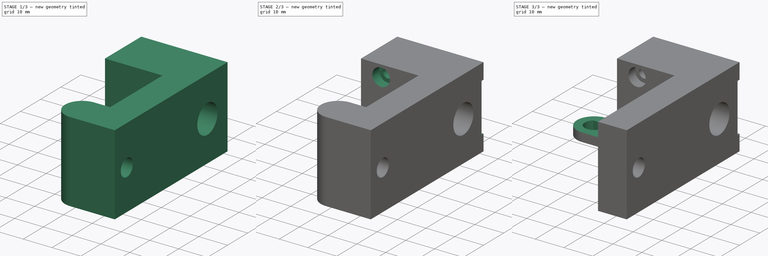
[diagram: build sequence overview — one tinted view per stage of 3, left to right]
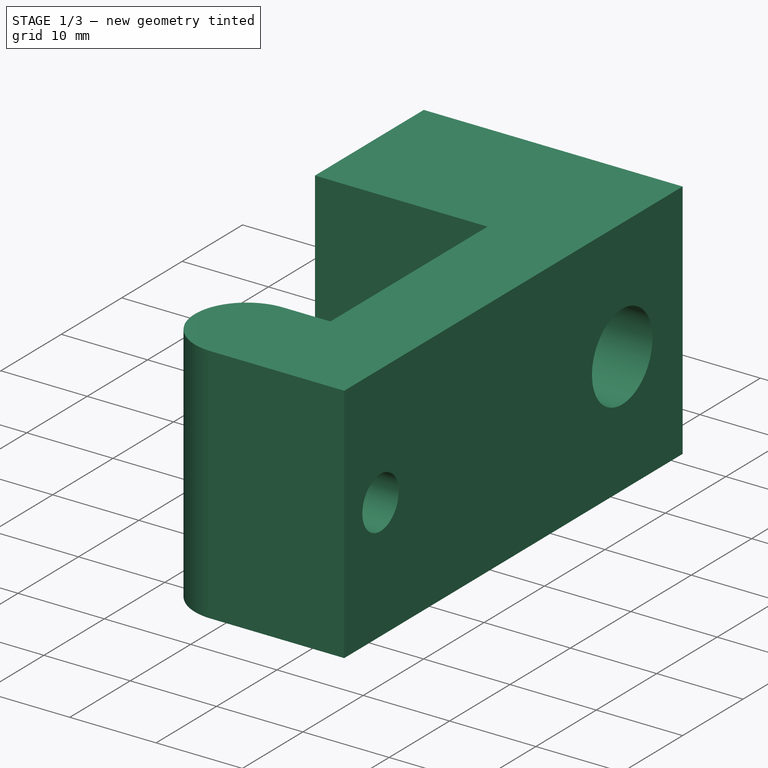
[diagram: stage 1 of 3 — iso view after this stage's code; geometry added in this stage tinted green]
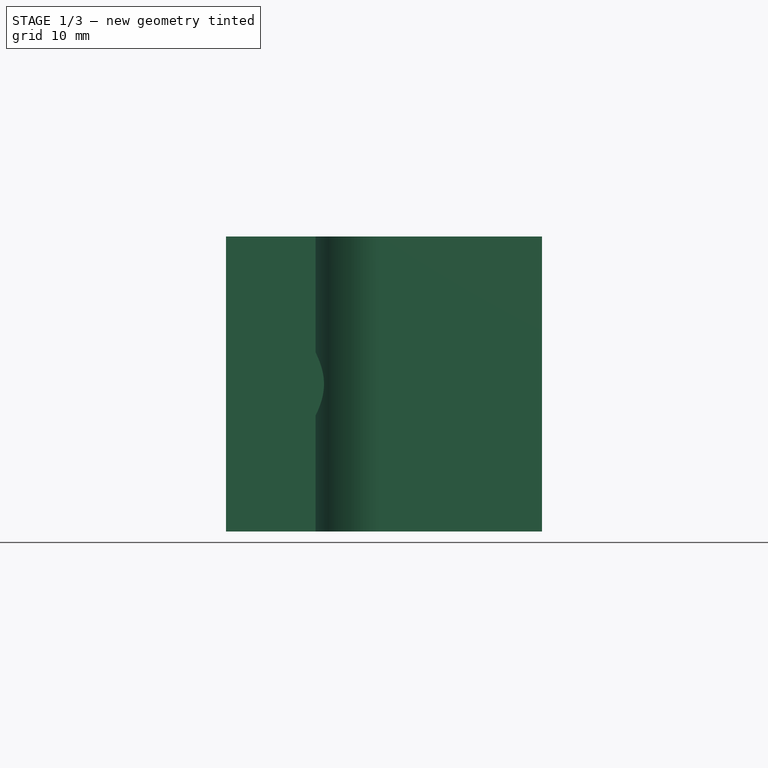
[diagram: stage 1 of 3 — front view after this stage's code; geometry added in this stage tinted green]
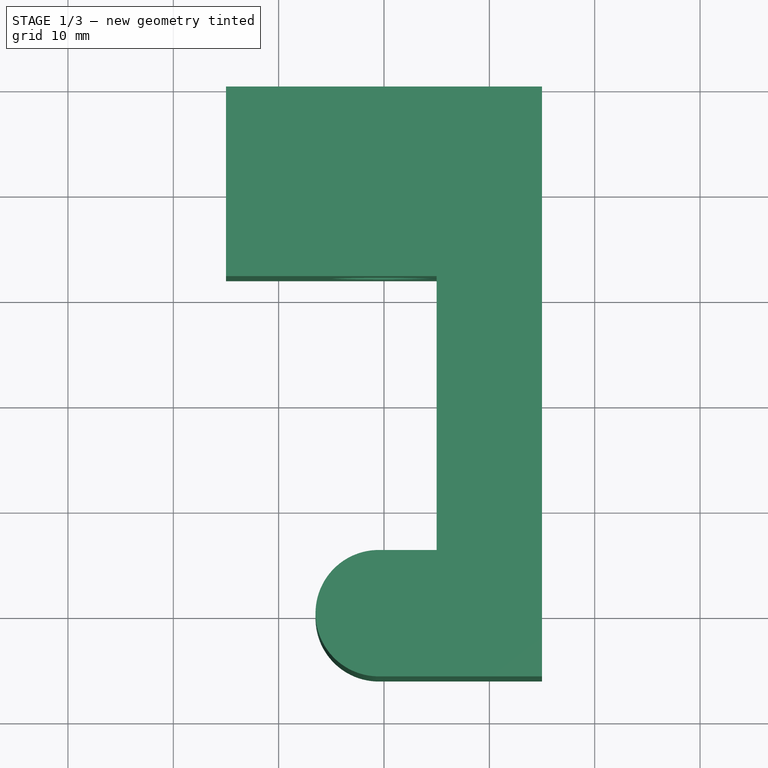
[diagram: stage 1 of 3 — top view after this stage's code; geometry added in this stage tinted green]
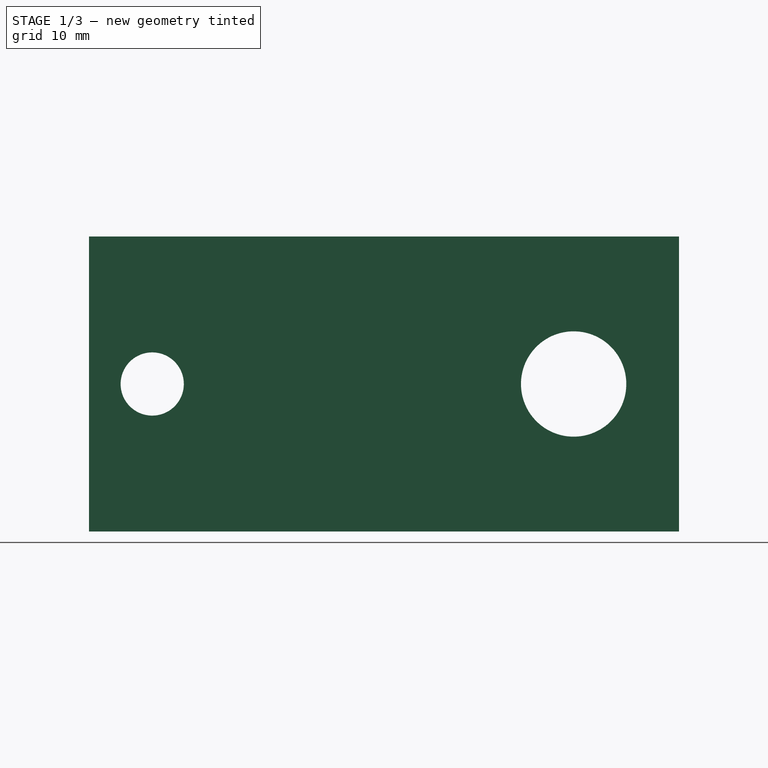
[diagram: stage 1 of 3 — right view after this stage's code; geometry added in this stage tinted green]
FCSTD DOCUMENT  (FreeCAD 0.21R33694 (Git))
Label: gamma-match-node-threads
License: All rights reserved
LicenseURL: https://en.wikipedia.org/wiki/All_rights_reserved
objects: Sketcher::SketchObject×11, PartDesign::Pocket×5, PartDesign::Plane×4, PartDesign::Hole×2, PartDesign::Pad×1, Part::Feature×1, PartDesign::Body×1
note: 33 computed .brp shape members not serialized (recipe doc carries the construction recipe); baked Part::Feature solids carry a one-line shape summary decoded from their .brp

FEATURE [Sketcher::SketchObject] Sketch  label="Master XY"
  FullyConstrained = true
  MapMode = 5
  Support = -> [XY_Plane]
  sketch-geometry (21):
    g0: LineSegment StartX=-15 StartY=-8 StartZ=0 EndX=-15 EndY=10 EndZ=0
    g1: LineSegment StartX=-15 StartY=10 StartZ=0 EndX=15 EndY=10 EndZ=0
    g2: LineSegment StartX=15 StartY=10 StartZ=0 EndX=15 EndY=-46 EndZ=0
    g3: LineSegment StartX=15 StartY=-46 StartZ=0 EndX=5 EndY=-46 EndZ=0
    g4: LineSegment StartX=-100 StartY=5 StartZ=0 EndX=100 EndY=5 EndZ=0
    g5: LineSegment StartX=100 StartY=5 StartZ=0 EndX=100 EndY=-5 EndZ=0
    g6: LineSegment StartX=100 StartY=-5 StartZ=0 EndX=-100 EndY=-5 EndZ=0
    g7: LineSegment StartX=-100 StartY=-5 StartZ=0 EndX=-100 EndY=5 EndZ=0
    g8: Circle CenterX=10 CenterY=-32 CenterZ=0 NormalX=0 NormalY=0 NormalZ=1 AngleXU=0 Radius=2
    g9: LineSegment StartX=-15 StartY=-8 StartZ=0 EndX=5 EndY=-8 EndZ=0
    g10: LineSegment StartX=-100 StartY=-37 StartZ=0 EndX=100 EndY=-37 EndZ=0
    g11: LineSegment StartX=100 StartY=-37 StartZ=0 EndX=100 EndY=-43 EndZ=0
    g12: LineSegment StartX=100 StartY=-43 StartZ=0 EndX=-100 EndY=-43 EndZ=0
    g13: LineSegment StartX=-100 StartY=-43 StartZ=0 EndX=-100 EndY=-37 EndZ=0
    g14: LineSegment StartX=100 StartY=-40 StartZ=0 EndX=-100 EndY=-40 EndZ=0
    g15: Circle CenterX=-0.5 CenterY=-40 CenterZ=0 NormalX=0 NormalY=0 NormalZ=1 AngleXU=0 Radius=3.25
    g16: ArcOfCircle CenterX=-0.5 CenterY=-40 CenterZ=0 NormalX=0 NormalY=0 NormalZ=1 AngleXU=0 Radius=6 StartAngle=1.5708 EndAngle=4.71239
    g17: LineSegment StartX=-0.5 StartY=-34 StartZ=0 EndX=5 EndY=-34 EndZ=0
    g18: LineSegment StartX=-0.5 StartY=-46 StartZ=0 EndX=5 EndY=-46 EndZ=0
    g19: LineSegment StartX=-0.5 StartY=-46 StartZ=0 EndX=-0.5 EndY=-34 EndZ=0
    g20: LineSegment StartX=5 StartY=-8 StartZ=0 EndX=5 EndY=-34 EndZ=0
  constraints (61):
    c: Coincident(g0,g1)
    c: Coincident(g1,g2)
    c: Vertical(g2)
    c: Coincident(g2,g3)
    c: Horizontal(g3)
    c: Symmetric(g0,g1,g-2)
    c: Coincident(g4,g5)
    c: Coincident(g5,g6)
    c: Coincident(g6,g7)
    c: Coincident(g7,g4)
    c: Horizontal(g4)
    c: Horizontal(g6)
    c: Vertical(g5)
    c: Vertical(g7)
    c: DistanceY(g5,g5) = 10
    c: Symmetric(g4,g6,g-1)
    c: DistanceX(g4,g4) = 200
    c: DistanceX(g3,g3) = 10
    c: Diameter(g8) = 4
    c: Coincident(g9,g0)
    c: Horizontal(g9)
    c: DistanceX(g1,g1) = 30
    c: DistanceY(g0,g-1) = 8
    c: DistanceY(g-1,g0) = 10
    c: Vertical(g0)
    c: Coincident(g10,g11)
    c: Coincident(g11,g12)
    c: Coincident(g12,g13)
    c: Coincident(g13,g10)
    c: Horizontal(g10)
    c: Horizontal(g12)
    c: Vertical(g11)
    c: Equal(g10,g6)
    c: DistanceY(g13,g13) = 6
    c: DistanceY(g10,g5) = 32
    c: DistanceY(g11,g8) = 11
    c: PointOnObject(g14,g11)
    c: PointOnObject(g14,g13)
    c: Horizontal(g14)
    c: DistanceY(g14,g10) = 3
    c: DistanceX(g8,g2) = 5
    c: Equal(g14,g12)
    c: Vertical(g10,g5)
    c: PointOnObject(g15,g14)
    c: Diameter(g15) = 6.5
    c: DistanceX(g15,g3) = 5.5
    c: Coincident(g16,g15)
    c: Radius(g16) = 6
    c: Coincident(g17,g16)
    c: Horizontal(g17)
    c: Coincident(g18,g16)
    c: Horizontal(g18)
    c: Vertical(g19)
    c: PointOnObject(g15,g19)
    c: Coincident(g19,g16)
    c: Coincident(g19,g16)
    c: Coincident(g20,g9)
    c: Coincident(g20,g17)
    c: Vertical(g20)
    c: Equal(g18,g17)
    c: Coincident(g3,g18)
FEATURE [Sketcher::SketchObject] Sketch001
  ExternalGeometry = -> [Sketch]
  FullyConstrained = true
  MapMode = 5
  Support = -> [XY_Plane]
  sketch-geometry (9):
    g0: LineSegment StartX=-15 StartY=-8 StartZ=0 EndX=-15 EndY=10 EndZ=0
    g1: LineSegment StartX=-15 StartY=10 StartZ=0 EndX=15 EndY=10 EndZ=0
    g2: LineSegment StartX=15 StartY=10 StartZ=0 EndX=15 EndY=-46 EndZ=0
    g3: LineSegment StartX=-15 StartY=-8 StartZ=0 EndX=5 EndY=-8 EndZ=0
    g4: LineSegment StartX=5 StartY=-8 StartZ=0 EndX=5 EndY=-34 EndZ=0
    g5: ArcOfCircle CenterX=-0.5 CenterY=-40 CenterZ=0 NormalX=0 NormalY=0 NormalZ=1 AngleXU=0 Radius=6 StartAngle=1.5708 EndAngle=4.71239
    g6: LineSegment StartX=-0.5 StartY=-34 StartZ=0 EndX=5 EndY=-34 EndZ=0
    g7: LineSegment StartX=-0.5 StartY=-46 StartZ=0 EndX=5 EndY=-46 EndZ=0
    g8: LineSegment StartX=5 StartY=-46 StartZ=0 EndX=15 EndY=-46 EndZ=0
  constraints (19):
    c: Coincident(g0,g-8)
    c: Coincident(g0,g1)
    c: Coincident(g-7,g1)
    c: Coincident(g1,g2)
    c: Coincident(g2,g-6)
    c: Coincident(g3,g0)
    c: Coincident(g-4,g0)
    c: Coincident(g4,g-3)
    c: Coincident(g3,g4)
    c: Coincident(g4,g-11)
    c: Coincident(g5,g-10)
    c: Coincident(g5,g-12)
    c: Coincident(g6,g5)
    c: Coincident(g6,g4)
    c: Coincident(g7,g5)
    c: Coincident(g7,g-5)
    c: Horizontal(g7)
    c: Coincident(g8,g7)
    c: Coincident(g8,g2)
FEATURE [Sketcher::SketchObject] Sketch003  label="Antenna element holes"
  ExternalGeometry = -> [Sketch]
  FullyConstrained = true
  MapMode = 5
  Placement = pos=(0,0,0) rot=(0.57735,0.57735,0.57735;2.0944rad)
  Support = -> [YZ_Plane]
  sketch-geometry (2):
    g0: Circle CenterX=0 CenterY=0 CenterZ=0 NormalX=0 NormalY=0 NormalZ=1 AngleXU=0 Radius=5
    g1: Circle CenterX=-40 CenterY=0 CenterZ=0 NormalX=0 NormalY=0 NormalZ=1 AngleXU=0 Radius=3
  constraints (5):
    c: Coincident(g0,g-1)
    c: Diameter(g0) = 10
    c: PointOnObject(g1,g-1)
    c: Diameter(g1) = 6
    c: DistanceX(g1,g0) = 40
FEATURE [PartDesign::Pad] Pad
  Direction = (0,0,1)
  Length = 28
  Length2 = 13
  Midplane = true
  Profile = -> Sketch001
  ReferenceAxis = -> Sketch001 [N_Axis]
  Type = 0
FEATURE [Sketcher::SketchObject] Sketch008  label="Master XZ"
  ExternalGeometry = -> [Sketch]
  FullyConstrained = true
  MapMode = 5
  Placement = pos=(0,0,0) rot=(1,0,0;1.5708rad)
  Support = -> [XZ_Plane]
  sketch-geometry (8):
    g0: LineSegment StartX=-15 StartY=8.5 StartZ=0 EndX=15 EndY=8.5 EndZ=0
    g1: LineSegment StartX=15 StartY=8.5 StartZ=0 EndX=15 EndY=-8.5 EndZ=0
    g2: LineSegment StartX=15 StartY=-8.5 StartZ=0 EndX=-15 EndY=-8.5 EndZ=0
    g3: LineSegment StartX=-15 StartY=-8.5 StartZ=0 EndX=-15 EndY=8.5 EndZ=0
    g4: Circle CenterX=0 CenterY=0 CenterZ=0 NormalX=0 NormalY=0 NormalZ=1 AngleXU=0 Radius=5
    g5: Circle CenterX=-8 CenterY=10 CenterZ=0 NormalX=0 NormalY=0 NormalZ=1 AngleXU=0 Radius=1.5
    g6: Circle CenterX=-8 CenterY=-10 CenterZ=0 NormalX=0 NormalY=0 NormalZ=1 AngleXU=0 Radius=1.5
    g7: LineSegment StartX=-8 StartY=10 StartZ=0 EndX=-8 EndY=-10 EndZ=0
  constraints (20):
    c: Coincident(g0,g1)
    c: Coincident(g1,g2)
    c: Coincident(g2,g3)
    c: Coincident(g3,g0)
    c: Horizontal(g0)
    c: Horizontal(g2)
    c: Vertical(g1)
    c: Vertical(g3)
    c: Symmetric(g2,g0,g-1)
    c: DistanceY(g1,g1) = 17
    c: PointOnObject(g-3,g3)
    c: Coincident(g4,g-1)
    c: Diameter(g4) = 10
    c: Equal(g5,g6)
    c: Diameter(g5) = 3
    c: Symmetric(g5,g6,g-1)
    c: DistanceY(g4,g5) = 10
    c: Coincident(g7,g5)
    c: DistanceX(g5,g4) = 8
    c: Coincident(g7,g6)
FEATURE [Sketcher::SketchObject] Sketch009
  AttachmentOffset = pos=(0,0,-4) rot=(0,0,1;0rad)
  FullyConstrained = true
  MapMode = 5
  Placement = pos=(0,0,-4) rot=(0,0,1;0rad)
  Support = -> [XY_Plane]
  sketch-geometry (1):
    g0: Circle CenterX=0 CenterY=0 CenterZ=0 NormalX=0 NormalY=0 NormalZ=1 AngleXU=0 Radius=1.5
  constraints (2):
    c: Coincident(g0,g-1)
    c: Diameter(g0) = 3
FEATURE [PartDesign::Pocket] Pocket
  BaseFeature = -> Pad
  Direction = (-1,2e-16,-3e-16)
  Length = 5
  Length2 = 5
  Midplane = true
  Profile = -> Sketch003
  ReferenceAxis = -> Sketch003 [N_Axis]
  Type = 1
FEATURE [Part::Feature] _01_9889_rfx
  Placement = pos=(-0.5,-40,10.5) rot=(0.57735,0.57735,-0.57735;2.0944rad)
  shape: bbox 10.62 x 10.62 x 17.32 mm, 151 faces, 0 solids (baked)
FEATURE [PartDesign::Plane] DatumPlane004  label="Driven element plane"
  Length = 60
  MapMode = 5
  Placement = pos=(0,-8,0) rot=(1,0,0;1.5708rad)
  ResizeMode = 0
  Support = -> [Pocket]
  Width = 60
FEATURE [Sketcher::SketchObject] Sketch010  label="Driven element screws"
  ExternalGeometry = -> [Sketch008]
  FullyConstrained = true
  MapMode = 5
  Placement = pos=(0,-8,0) rot=(1,0,0;1.5708rad)
  Support = -> [DatumPlane004]
  sketch-geometry (2):
    g0: Circle CenterX=-8 CenterY=10 CenterZ=0 NormalX=0 NormalY=0 NormalZ=1 AngleXU=0 Radius=1.5
    g1: Circle CenterX=-8 CenterY=-10 CenterZ=0 NormalX=0 NormalY=0 NormalZ=1 AngleXU=0 Radius=1.5
  constraints (4):
    c: Coincident(g1,g-3)
    c: Coincident(g0,g-4)
    c: Equal(g-4,g0)
    c: Equal(g1,g-3)
FEATURE [Sketcher::SketchObject] Sketch011  label="Driven element access"
  ExternalGeometry = -> [Sketch008]
  FullyConstrained = true
  MapMode = 5
  Placement = pos=(0,-8,0) rot=(1,0,0;1.5708rad)
  Support = -> [DatumPlane004]
  sketch-geometry (1):
    g0: Circle CenterX=0 CenterY=0 CenterZ=0 NormalX=0 NormalY=0 NormalZ=1 AngleXU=0 Radius=5
  constraints (2):
    c: Coincident(g0,g-1)
    c: Diameter(g0) = 10
FEATURE [PartDesign::Pocket] Pocket001  label="Driven element access001"
  BaseFeature = -> Pocket
  Direction = (0,1,-2e-16)
  Length = 5
  Length2 = 5
  Profile = -> Sketch011
  ReferenceAxis = -> Sketch011 [N_Axis]
  Type = 2
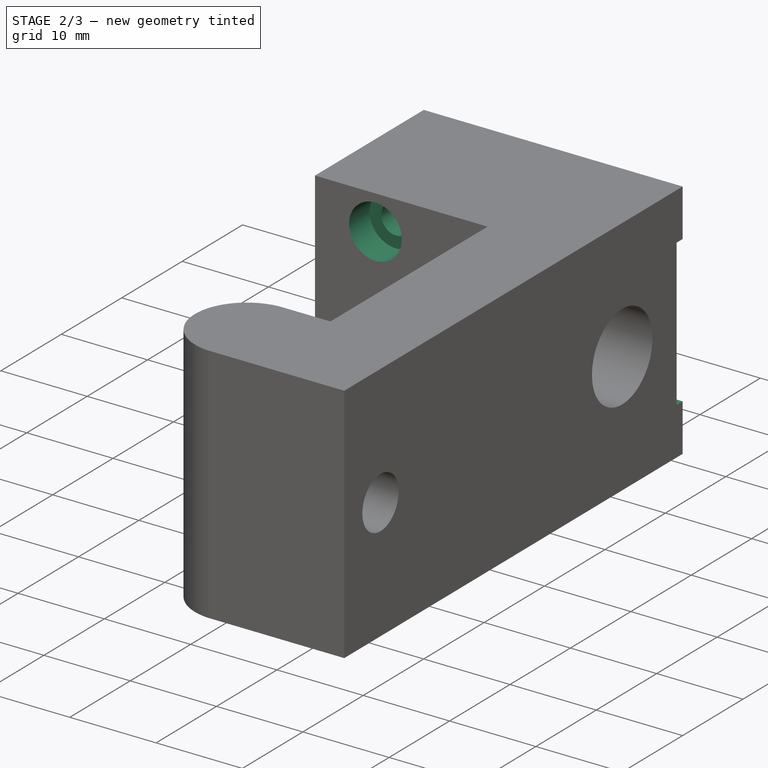
[diagram: stage 2 of 3 — iso view after this stage's code; geometry added in this stage tinted green]
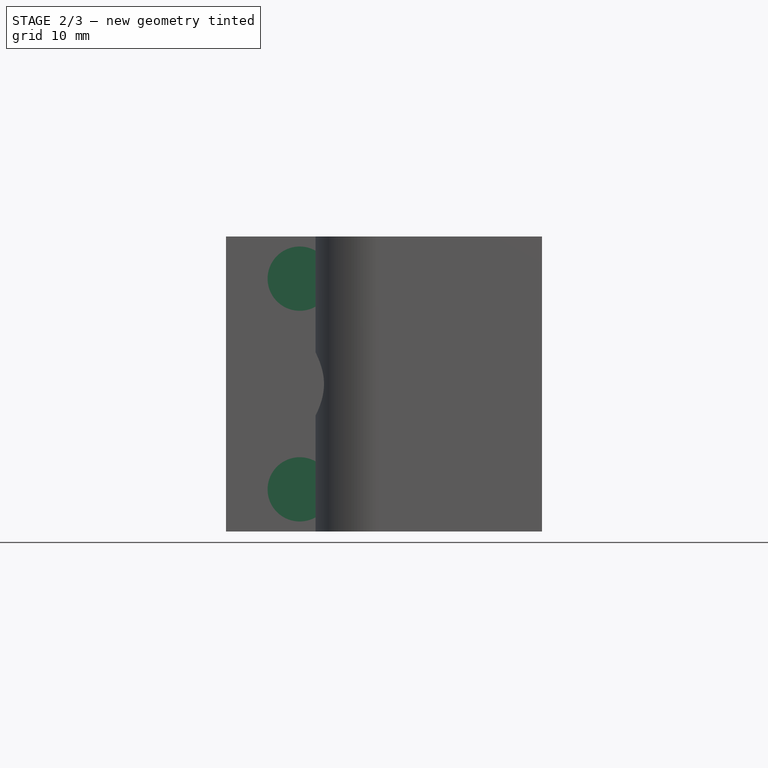
[diagram: stage 2 of 3 — front view after this stage's code; geometry added in this stage tinted green]
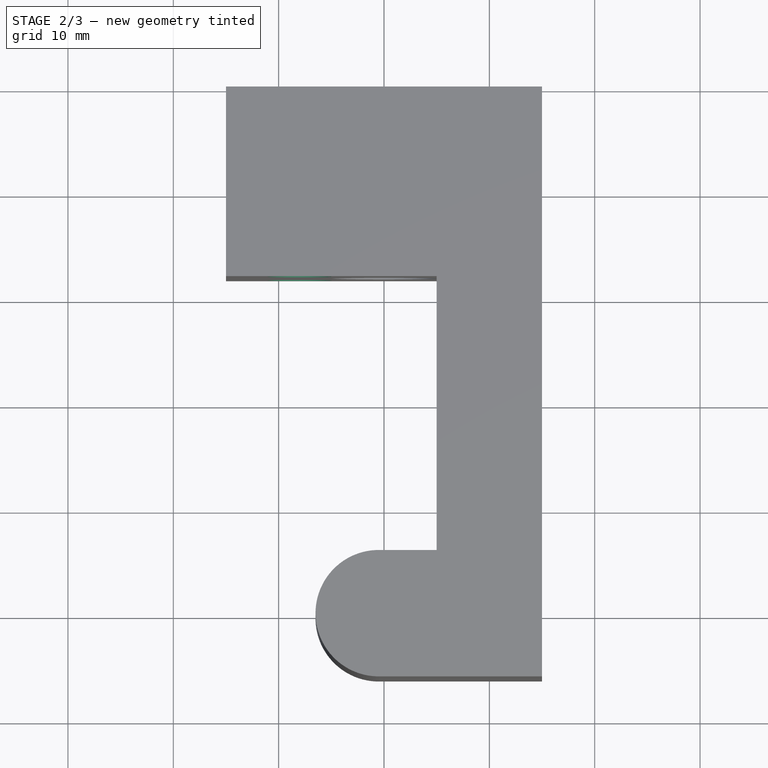
[diagram: stage 2 of 3 — top view after this stage's code; geometry added in this stage tinted green]
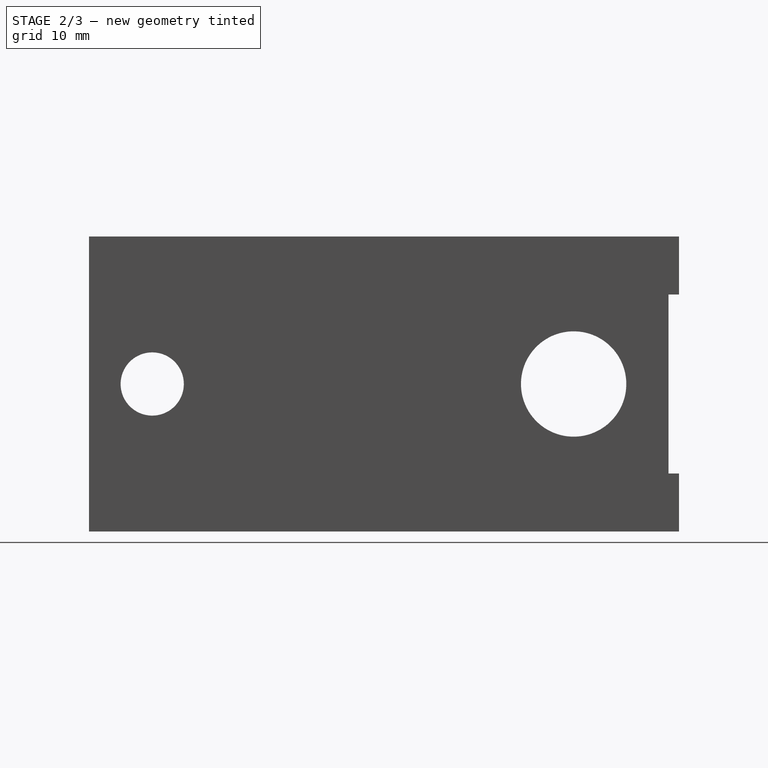
[diagram: stage 2 of 3 — right view after this stage's code; geometry added in this stage tinted green]
FEATURE [PartDesign::Hole] Hole  label="Driven element screws001"
  BaseFeature = -> Pocket001
  CustomThreadClearance = 0
  Depth = 8
  DepthType = 0
  Diameter = 3.4
  DrillForDepth = false
  DrillPoint = 0
  DrillPointAngle = 118
  HoleCutCountersinkAngle = 90
  HoleCutCustomValues = false
  HoleCutDepth = 3.4
  HoleCutDiameter = 6.1
  HoleCutType = 1
  ModelThread = false
  Profile = -> Sketch010
  Tapered = false
  TaperedAngle = 90
  ThreadClass = 0
  ThreadDepth = 8
  ThreadDepthType = 0
  ThreadDirection = 0
  ThreadFit = 0
  ThreadSize = 9
  ThreadType = 1
  Threaded = false
  UseCustomThreadClearance = false
FEATURE [PartDesign::Plane] DatumPlane  label="Fixing plane"
  Length = 60
  MapMode = 5
  Placement = pos=(0,10,0) rot=(0,0.707107,0.707107;3.14159rad)
  ResizeMode = 0
  Support = -> [Pocket]
  Width = 60
FEATURE [Sketcher::SketchObject] Sketch013  label="Fixing slot"
  ExternalGeometry = -> [Sketch008]
  FullyConstrained = true
  MapMode = 5
  Placement = pos=(0,10,0) rot=(0,0.707107,0.707107;3.14159rad)
  Support = -> [DatumPlane]
  sketch-geometry (4):
    g0: LineSegment StartX=15 StartY=8.5 StartZ=0 EndX=-15 EndY=8.5 EndZ=0
    g1: LineSegment StartX=-15 StartY=8.5 StartZ=0 EndX=-15 EndY=-8.5 EndZ=0
    g2: LineSegment StartX=-15 StartY=-8.5 StartZ=0 EndX=15 EndY=-8.5 EndZ=0
    g3: LineSegment StartX=15 StartY=-8.5 StartZ=0 EndX=15 EndY=8.5 EndZ=0
  constraints (10):
    c: Coincident(g0,g1)
    c: Coincident(g1,g2)
    c: Coincident(g2,g3)
    c: Coincident(g3,g0)
    c: Horizontal(g0)
    c: Horizontal(g2)
    c: Vertical(g1)
    c: Vertical(g3)
    c: Coincident(g0,g-6)
    c: Coincident(g1,g-5)
FEATURE [PartDesign::Pocket] Pocket003  label="Fixing slot001"
  BaseFeature = -> Hole
  Direction = (0,-1,2e-16)
  Length = 1
  Length2 = 5
  Profile = -> Sketch013
  ReferenceAxis = -> Sketch013 [N_Axis]
  Type = 0
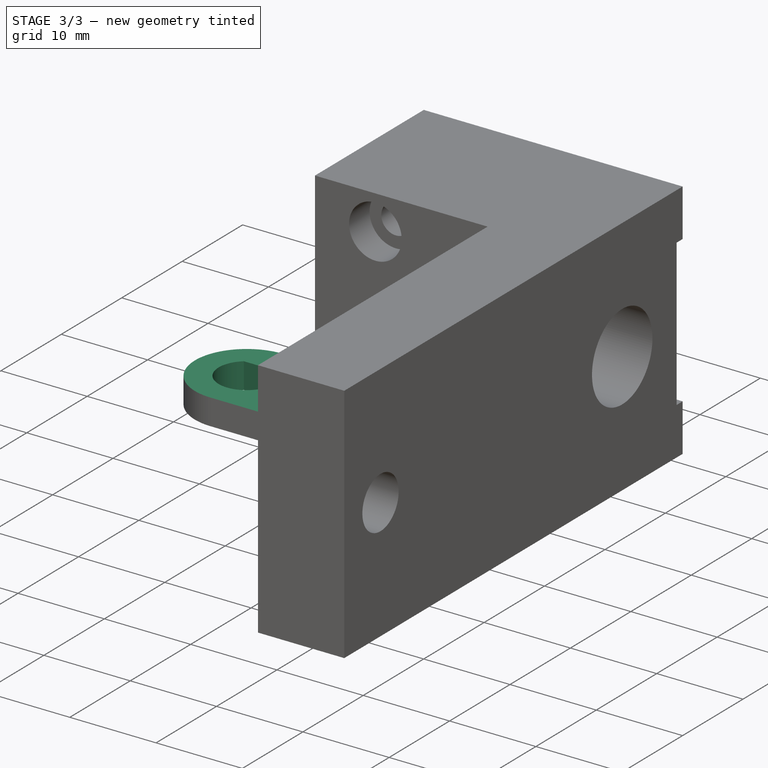
[diagram: stage 3 of 3 — iso view after this stage's code; geometry added in this stage tinted green]
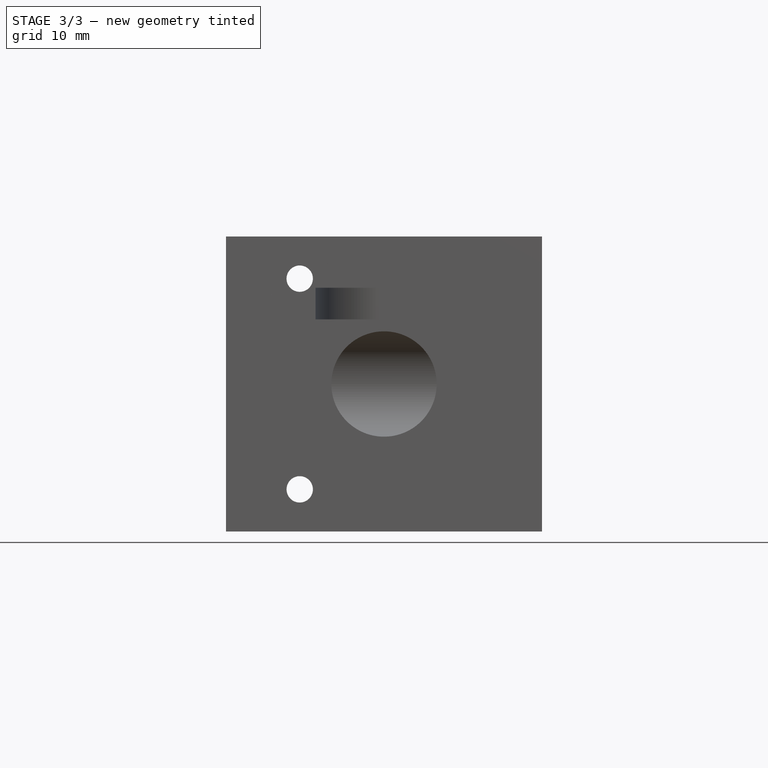
[diagram: stage 3 of 3 — front view after this stage's code; geometry added in this stage tinted green]
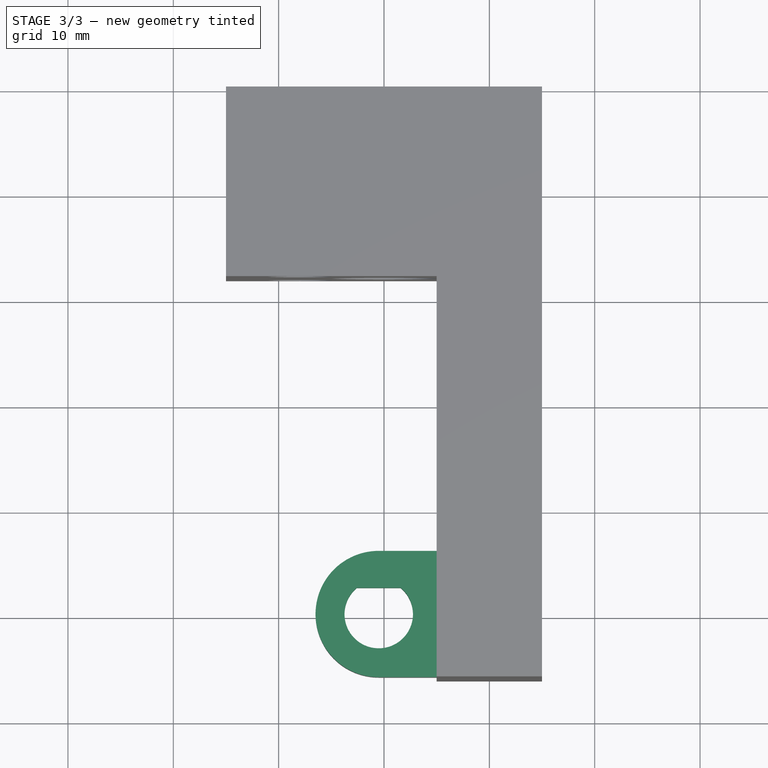
[diagram: stage 3 of 3 — top view after this stage's code; geometry added in this stage tinted green]
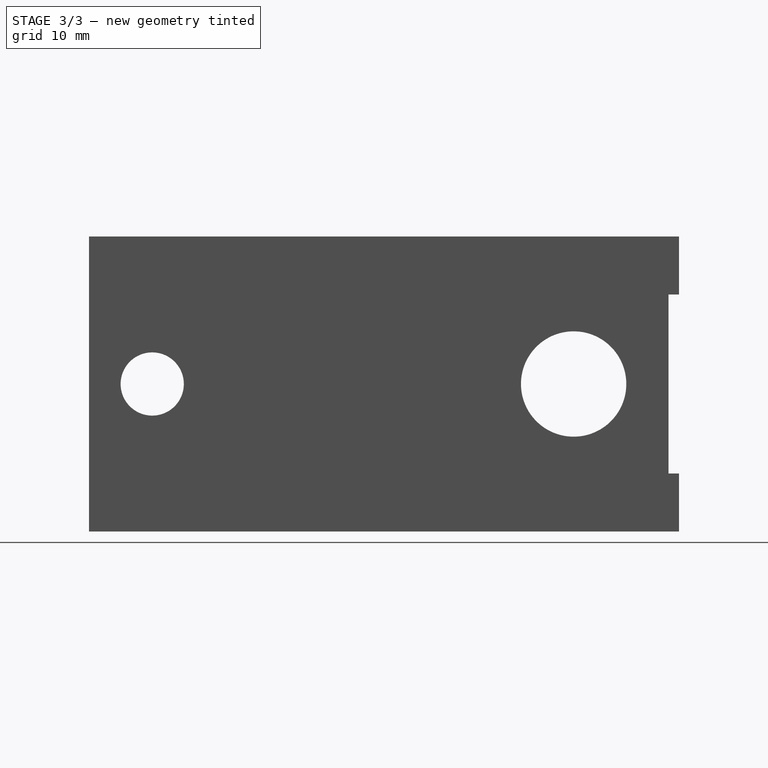
[diagram: stage 3 of 3 — right view after this stage's code; geometry added in this stage tinted green]
FEATURE [PartDesign::Plane] DatumPlane005
  Length = 82.9164
  MapMode = 5
  Placement = pos=(5,-1e-16,0) rot=(-0.57735,0.57735,0.57735;4.18879rad)
  ResizeMode = 0
  Support = -> [Pocket003]
  Width = 61.9164
FEATURE [Sketcher::SketchObject] Sketch014
  ExternalGeometry = -> [Sketch]
  FullyConstrained = true
  MapMode = 5
  Placement = pos=(5,-1e-16,0) rot=(0.57735,-0.57735,-0.57735;2.0944rad)
  Support = -> [DatumPlane005]
  sketch-geometry (8):
    g0: LineSegment StartX=8 StartY=6.14 StartZ=0 EndX=46 EndY=6.14 EndZ=0
    g1: LineSegment StartX=46 StartY=6.14 StartZ=0 EndX=46 EndY=-14 EndZ=0
    g2: LineSegment StartX=46 StartY=-14 StartZ=0 EndX=8 EndY=-14 EndZ=0
    g3: LineSegment StartX=8 StartY=-14 StartZ=0 EndX=8 EndY=6.14 EndZ=0
    g4: LineSegment StartX=8 StartY=14 StartZ=0 EndX=46 EndY=14 EndZ=0
    g5: LineSegment StartX=46 StartY=14 StartZ=0 EndX=46 EndY=9.14 EndZ=0
    g6: LineSegment StartX=46 StartY=9.14 StartZ=0 EndX=8 EndY=9.14 EndZ=0
    g7: LineSegment StartX=8 StartY=9.14 StartZ=0 EndX=8 EndY=14 EndZ=0
  constraints (24):
    c: Coincident(g0,g1)
    c: Coincident(g1,g2)
    c: Coincident(g2,g3)
    c: Coincident(g3,g0)
    c: Horizontal(g0)
    c: Horizontal(g2)
    c: Vertical(g1)
    c: Vertical(g3)
    c: Coincident(g4,g5)
    c: Coincident(g5,g6)
    c: Coincident(g6,g7)
    c: Coincident(g7,g4)
    c: Horizontal(g4)
    c: Horizontal(g6)
    c: Vertical(g5)
    c: Vertical(g7)
    c: PointOnObject(g-3,g3)
    c: Vertical(g5,g0)
    c: Vertical(g6,g0)
    c: DistanceY(g-1,g4) = 14
    c: DistanceY(g2,g-1) = 14
    c: DistanceY(g0,g5) = 3
    c: DistanceY(g5,g5) = 4.86
    c: PointOnObject(g-4,g1)
FEATURE [Sketcher::SketchObject] Sketch016
  ExternalGeometry = -> [Sketch008]
  FullyConstrained = true
  MapMode = 5
  Placement = pos=(0,10,0) rot=(0,0.707107,0.707107;3.14159rad)
  Support = -> [DatumPlane]
  sketch-geometry (2):
    g0: Circle CenterX=8 CenterY=10 CenterZ=0 NormalX=0 NormalY=0 NormalZ=1 AngleXU=0 Radius=1.5
    g1: Circle CenterX=8 CenterY=-10 CenterZ=0 NormalX=0 NormalY=0 NormalZ=1 AngleXU=0 Radius=1.5
  constraints (4):
    c: Coincident(g0,g-3)
    c: Tangent(g0,g-3)
    c: Coincident(g1,g-4)
    c: Tangent(g1,g-4)
FEATURE [PartDesign::Pocket] Pocket004
  BaseFeature = -> Pocket003
  Direction = (1,0,0)
  Length = 0
  Length2 = 5
  Profile = -> Sketch014
  ReferenceAxis = -> Sketch014 [N_Axis]
  Reversed = true
  Type = 1
FEATURE [PartDesign::Plane] DatumPlane006
  Length = 61.9164
  MapMode = 5
  Placement = pos=(0,0,9.14) rot=(0,0,1;0rad)
  ResizeMode = 0
  Support = -> [Pocket004]
  Width = 82.9164
FEATURE [Sketcher::SketchObject] Sketch015
  ExternalGeometry = -> [Sketch]
  FullyConstrained = true
  MapMode = 5
  Placement = pos=(0,0,9.14) rot=(0,0,1;0rad)
  Support = -> [DatumPlane006]
  sketch-geometry (2):
    g0: ArcOfCircle CenterX=-0.5 CenterY=-40 CenterZ=0 NormalX=0 NormalY=0 NormalZ=1 AngleXU=0 Radius=3.25 StartAngle=2.26396 EndAngle=7.16082
    g1: LineSegment StartX=-2.57666 StartY=-37.5 StartZ=0 EndX=1.57666 EndY=-37.5 EndZ=0
  constraints (6):
    c: Coincident(g0,g-3)
    c: PointOnObject(g0,g-3)
    c: Coincident(g1,g0)
    c: Coincident(g1,g0)
    c: Horizontal(g1)
    c: DistanceY(g0,g0) = 2.5
FEATURE [PartDesign::Pocket] Pocket005
  BaseFeature = -> Pocket004
  Direction = (0,0,-1)
  Length = 5
  Length2 = 5
  Profile = -> Sketch015
  ReferenceAxis = -> Sketch015 [N_Axis]
  Type = 1
FEATURE [PartDesign::Hole] Hole001
  BaseFeature = -> Pocket005
  CustomThreadClearance = 0
  Depth = 10
  DepthType = 0
  Diameter = 2.5
  DrillForDepth = false
  DrillPoint = 1
  DrillPointAngle = 118
  HoleCutCountersinkAngle = 90
  HoleCutCustomValues = false
  HoleCutDepth = 0
  HoleCutDiameter = 6.1
  HoleCutType = 0
  ModelThread = false
  Profile = -> Sketch016
  Tapered = false
  TaperedAngle = 90
  ThreadClass = 0
  ThreadDepth = 10
  ThreadDepthType = 0
  ThreadDirection = 0
  ThreadFit = 0
  ThreadSize = 9
  ThreadType = 1
  Threaded = true
  UseCustomThreadClearance = false
FEATURE [PartDesign::Body] Body
  Group = -> [Sketch,Sketch001,Sketch003,Pad,Sketch008,Sketch009,Pocket,Sketch010,Sketch011,Pocket001,Hole,Sketch013,Pocket003,DatumPlane004,DatumPlane,DatumPlane005,Sketch014,Sketch015,Sketch016,Pocket004,DatumPlane006,Pocket005,Hole001]
  Origin = -> Origin
  Tip = -> Hole001
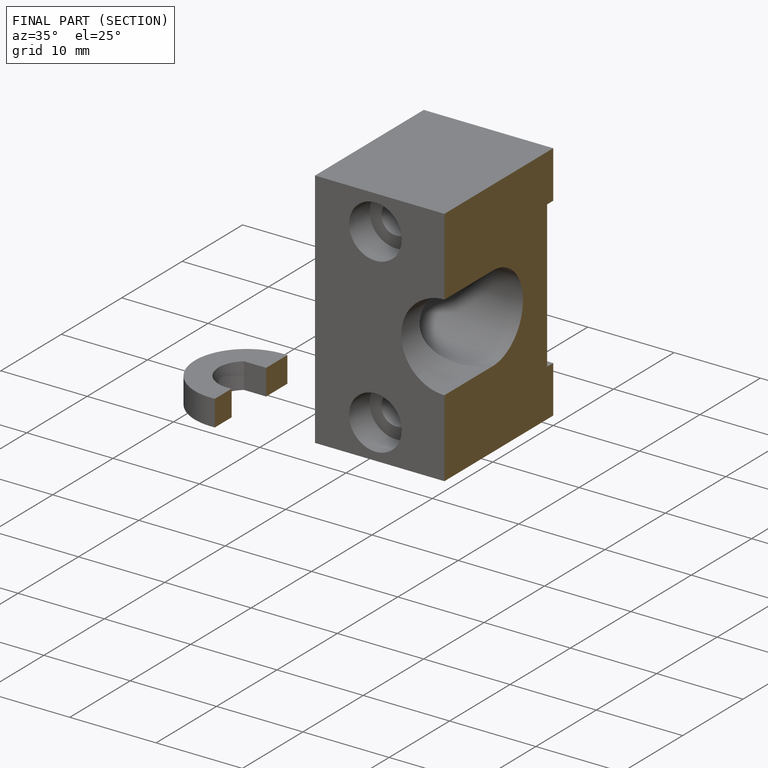
[diagram: finished part — half-section view (interior)]
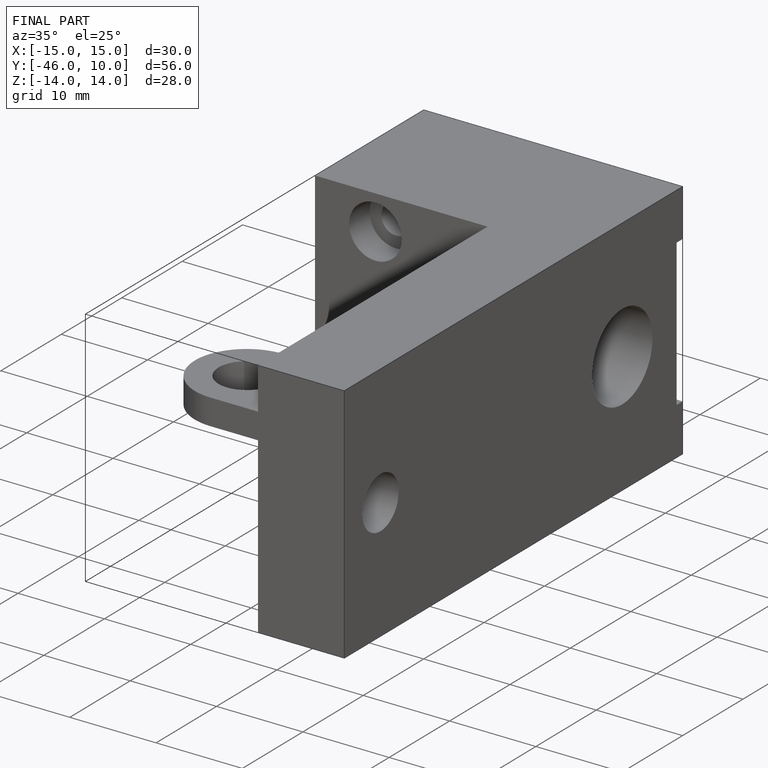
[diagram: finished part — iso view with bounding-box wireframe]
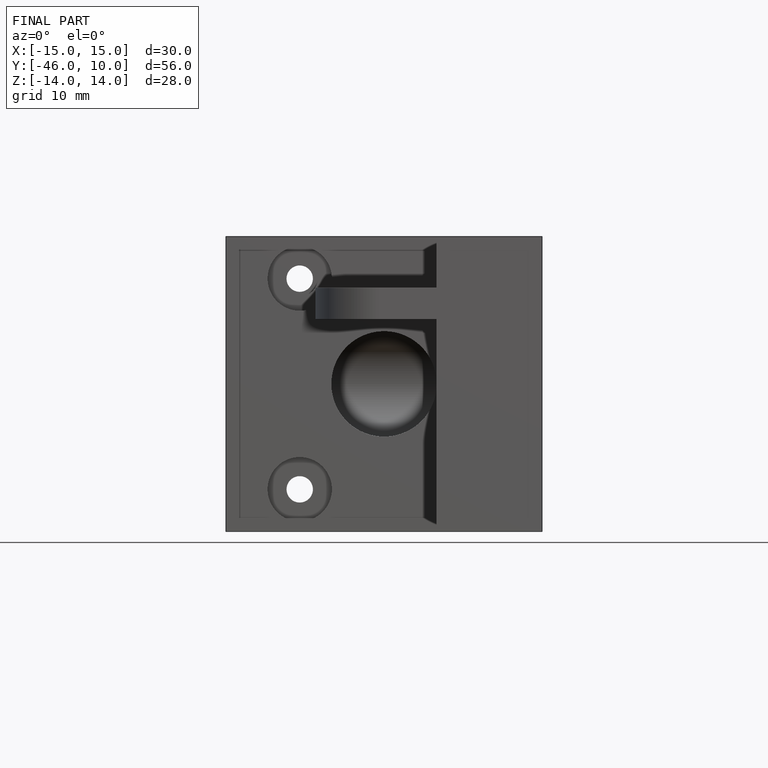
[diagram: finished part — front view with bounding-box wireframe]
